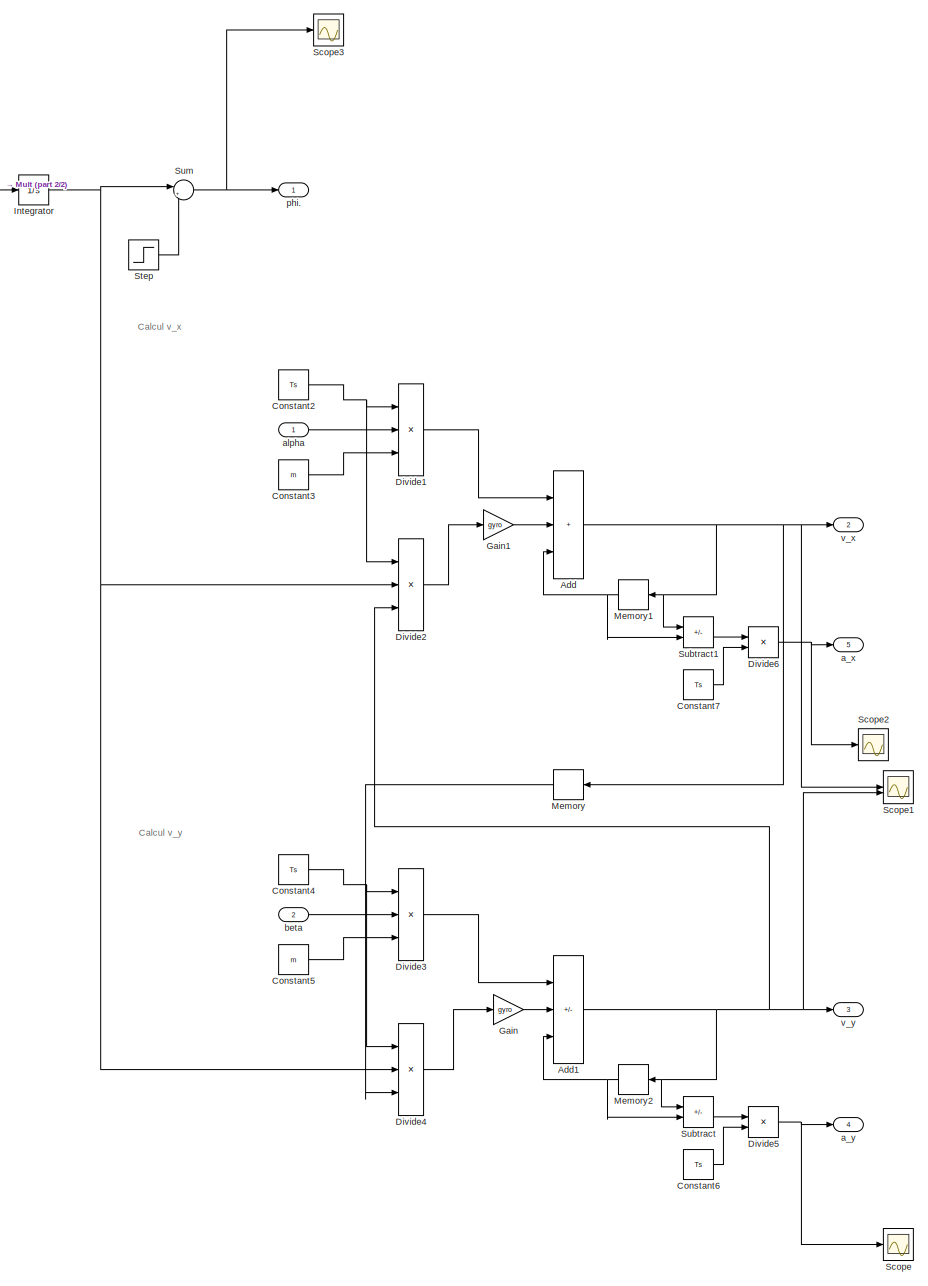
[diagram: root canvas - part 1/2, most of the canvas]
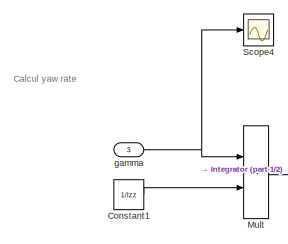
[diagram: root canvas - part 2/2, top left region]
MODEL slx_199b0ce01ec0
KIND model
CONFIG AbsTol = auto
CONFIG EnableMultiTasking = off
CONFIG FixedStep = Ts
CONFIG MaxStep = auto
CONFIG MinStep = auto
CONFIG RelTol = 1e-3
CONFIG SampleTimeConstraint = Unconstrained
CONFIG SolverName = FixedStepAuto
CONFIG StartTime = 0.0
CONFIG StopTime = 10.0
BLOCK [Sum] Add
  IconShape = rectangular
  Inputs = +++
BLOCK [Sum] Add1
  IconShape = rectangular
  Inputs = +-+
BLOCK [Constant] Constant1
  Value = 1/Izz
BLOCK [Constant] Constant2
  Value = Ts
BLOCK [Constant] Constant3
  Value = m
BLOCK [Constant] Constant4
  Value = Ts
BLOCK [Constant] Constant5
  Value = m
BLOCK [Constant] Constant6
  Value = Ts
BLOCK [Constant] Constant7
  Value = Ts
BLOCK [Product] Divide1
  Inputs = **/
BLOCK [Product] Divide2
  Inputs = ***
BLOCK [Product] Divide3
  Inputs = **/
BLOCK [Product] Divide4
  Inputs = ***
BLOCK [Product] Divide5
  Inputs = */
BLOCK [Product] Divide6
  Inputs = */
BLOCK [Gain] Gain
  Gain = gyro
BLOCK [Gain] Gain1
  Gain = gyro
BLOCK [Integrator] Integrator
BLOCK [Memory] Memory
  InitialCondition = v0
  NameLocation = top
BLOCK [Memory] Memory1
  InitialCondition = v0
  NameLocation = top
BLOCK [Memory] Memory2
  NameLocation = top
BLOCK [Product] Mult
  Inputs = **
BLOCK [Scope] Scope
  Floating = off
  NumInputPorts = 1
  ScopeSpecificationString = Simulink.scopes.TimeScopeBlockCfg('CurrentConfiguration', extmgr.ConfigurationSet(extmgr.Configuration('Core','General UI',true),extmgr.Configuration('Core','Source UI',true),extmgr.Configuration('Sources','WiredSimulink',true,'DataLoggingVariableName','ScopeData1'),extmgr.Configuration('Visuals','Time Domain',true,'SerializedDisplays',{struct('MinYLimReal','-378.74053','MaxYLimReal','357.89878','...<+1498ch>
BLOCK [Scope] Scope1
  Floating = off
  NumInputPorts = 2
  ScopeSpecificationString = Simulink.scopes.TimeScopeBlockCfg('CurrentConfiguration', extmgr.ConfigurationSet(extmgr.Configuration('Core','General UI',true),extmgr.Configuration('Core','Source UI',true),extmgr.Configuration('Sources','WiredSimulink',true,'DataLoggingVariableName','ScopeData1'),extmgr.Configuration('Visuals','Time Domain',true,'SerializedDisplays',{struct('MinYLimReal','-40.58382','MaxYLimReal','47.09297','YL...<+1555ch>
BLOCK [Scope] Scope2
  Floating = off
  NumInputPorts = 1
  ScopeSpecificationString = Simulink.scopes.TimeScopeBlockCfg('CurrentConfiguration', extmgr.ConfigurationSet(extmgr.Configuration('Core','General UI',true),extmgr.Configuration('Core','Source UI',true),extmgr.Configuration('Sources','WiredSimulink',true,'DataLoggingVariableName','ScopeData2'),extmgr.Configuration('Visuals','Time Domain',true,'SerializedDisplays',{struct('MinYLimReal','-683.48909','MaxYLimReal','762.46277','...<+1517ch>
BLOCK [Scope] Scope3
  Floating = off
  NumInputPorts = 1
  ScopeSpecificationString = Simulink.scopes.TimeScopeBlockCfg('CurrentConfiguration', extmgr.ConfigurationSet(extmgr.Configuration('Core','General UI',true),extmgr.Configuration('Core','Source UI',true),extmgr.Configuration('Sources','WiredSimulink',true,'DataLoggingVariableName','ScopeData3'),extmgr.Configuration('Visuals','Time Domain',true,'SerializedDisplays',{struct('MinYLimReal','-1.70612','MaxYLimReal','15.35511','YLa...<+1462ch>
BLOCK [Scope] Scope4
  Floating = off
  NumInputPorts = 1
  ScopeSpecificationString = Simulink.scopes.TimeScopeBlockCfg('CurrentConfiguration', extmgr.ConfigurationSet(extmgr.Configuration('Core','General UI',true),extmgr.Configuration('Core','Source UI',true),extmgr.Configuration('Sources','WiredSimulink',true,'DataLoggingVariableName','ScopeData1'),extmgr.Configuration('Visuals','Time Domain',true,'SerializedDisplays',{struct('MinYLimReal','-6559.06821','MaxYLimReal','6220.64034'...<+1504ch>
BLOCK [Step] Step
  After = 0
  SampleTime = 0
  Time = 3
BLOCK [Sum] Subtract
  IconShape = rectangular
  Inputs = +-
BLOCK [Sum] Subtract1
  IconShape = rectangular
  Inputs = +-
BLOCK [Sum] Sum
  Inputs = |++
BLOCK [Outport] a_x
  Port = 5
BLOCK [Outport] a_y
  Port = 4
BLOCK [Inport] alpha
BLOCK [Inport] beta
  Port = 2
BLOCK [Inport] gamma
  Port = 3
BLOCK [Outport] phi.
BLOCK [Outport] v_x
  Port = 2
BLOCK [Outport] v_y
  Port = 3
ANNOTATION (root): Calcul v_x
ANNOTATION (root): Calcul v_y
ANNOTATION (root): Calcul yaw rate
NET Add1:1 -> Divide2:3, Memory2:1, Scope1:2, Subtract:1, v_y:1
NET Add:1 -> Memory1:1, Memory:1, Scope1:1, Subtract1:1, v_x:1
LINE Constant1:1 -> Mult:2
NET Constant2:1 -> Divide1:1, Divide2:1
LINE Constant3:1 -> Divide1:3
NET Constant4:1 -> Divide3:1, Divide4:1
LINE Constant5:1 -> Divide3:3
LINE Constant6:1 -> Divide5:2
LINE Constant7:1 -> Divide6:2
LINE Divide1:1 -> Add:1
LINE Divide2:1 -> Gain1:1
LINE Divide3:1 -> Add1:1
LINE Divide4:1 -> Gain:1
NET Divide5:1 -> Scope:1, a_y:1
NET Divide6:1 -> Scope2:1, a_x:1
LINE Gain1:1 -> Add:2
LINE Gain:1 -> Add1:2
NET Integrator:1 -> Divide2:2, Divide4:2, Sum:1
NET Memory1:1 -> Add:3, Subtract1:2
NET Memory2:1 -> Add1:3, Subtract:2
LINE Memory:1 -> Divide4:3
LINE Mult:1 -> Integrator:1
LINE Step:1 -> Sum:2
LINE Subtract1:1 -> Divide6:1
LINE Subtract:1 -> Divide5:1
NET Sum:1 -> Scope3:1, phi.:1
LINE alpha:1 -> Divide1:2
LINE beta:1 -> Divide3:2
NET gamma:1 -> Mult:1, Scope4:1
note: NET lines group one-source signal fan-out (src -> all destinations, sorted); 1:1 wires keep LINE
